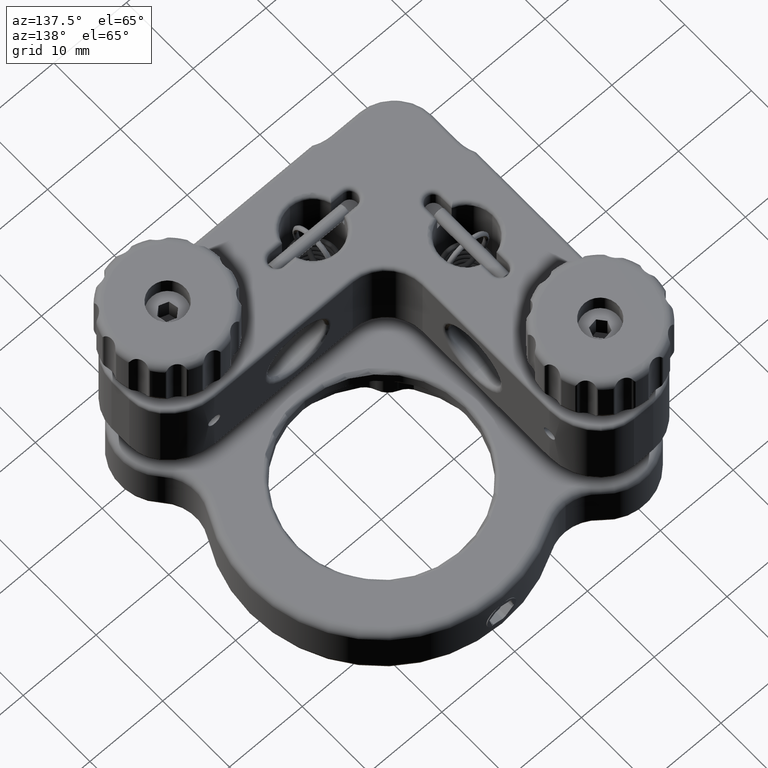
[diagram: clean part render]
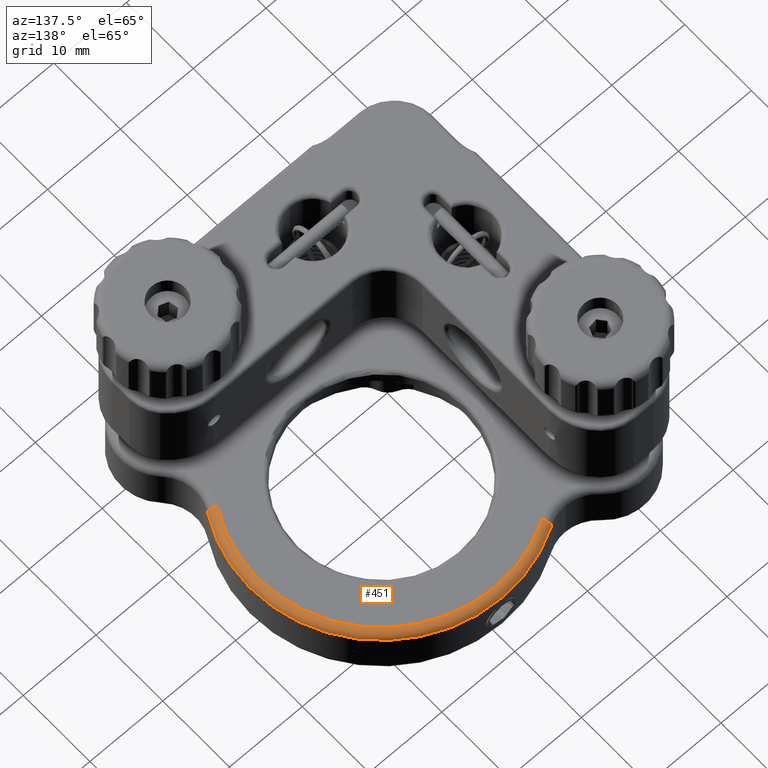
[diagram: same view with one face highlighted and labeled with its STEP entity id]
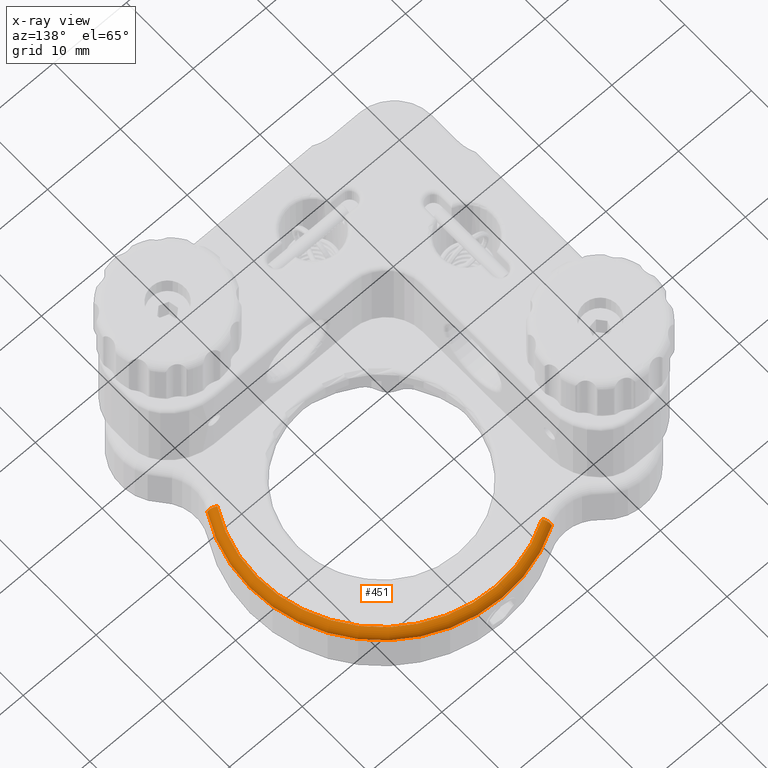
[diagram: x-ray of the same camera — body ghosted, the highlighted face saturated]
A machine part, auxiliary view. The second image highlights one B-rep face of the part: STEP entity #451.
The next image is the same camera in x-ray: the body ghosted, the highlighted face saturated — about 0% of this face is hidden behind the body in this view.
In plain terms, the highlighted toroidal blend (fillet) surface has major radius 17 mm and minor (blend) radius 1 mm.
Its self-contained STEP definition (entity closure, byte-faithful):
#451 = ADVANCED_FACE ( 'NONE', ( #7702 ), #20579, .T. ) ;
#531 = CARTESIAN_POINT ( 'NONE',  ( 34.12360640124477840, 10.83108220009702727, -11.00000000000000711 ) ) ;
#1336 = EDGE_CURVE ( 'NONE', #14840, #2399, #6984, .T. ) ;
#1852 = ORIENTED_EDGE ( 'NONE', *, *, #7085, .T. ) ;
#2141 = DIRECTION ( 'NONE',  ( 0.000000000000000000, -2.775557561562891967E-17, -1.000000000000000000 ) ) ;
#2167 = VERTEX_POINT ( 'NONE', #6623 ) ;
#2399 = VERTEX_POINT ( 'NONE', #14063 ) ;
#2555 = DIRECTION ( 'NONE',  ( -0.8602121412496915864, 0.5099363411707590332, 0.000000000000000000 ) ) ;
#2652 = ORIENTED_EDGE ( 'NONE', *, *, #6473, .F. ) ;
#2717 = AXIS2_PLACEMENT_3D ( 'NONE', #17358, #2141, #21312 ) ;
#3365 = CIRCLE ( 'NONE', #5786, 18.00000000000000000 ) ;
#3712 = CIRCLE ( 'NONE', #23176, 16.99999999999999645 ) ;
#4608 = CARTESIAN_POINT ( 'NONE',  ( 19.50000000000002487, 19.49999999999992539, -11.00000000000000711 ) ) ;
#5046 = ORIENTED_EDGE ( 'NONE', *, *, #1336, .F. ) ;
#5786 = AXIS2_PLACEMENT_3D ( 'NONE', #4608, #14002, #8293 ) ;
#6473 = EDGE_CURVE ( 'NONE', #2399, #2167, #3365, .T. ) ;
#6623 = CARTESIAN_POINT ( 'NONE',  ( 34.98381854249446832, 10.32114585892626657, -11.00000000000000711 ) ) ;
#6984 = CIRCLE ( 'NONE', #13425, 0.9999999999999982236 ) ;
#7085 = EDGE_CURVE ( 'NONE', #9214, #2167, #22367, .T. ) ;
#7702 = FACE_OUTER_BOUND ( 'NONE', #17556, .T. ) ;
#8260 = DIRECTION ( 'NONE',  ( 0.5099363411707596994, 0.8602121412496912534, 4.775136626387579206E-17 ) ) ;
#8293 = DIRECTION ( 'NONE',  ( -2.312964634635742661E-15, -1.000000000000000000, -9.637352644315595243E-17 ) ) ;
#9214 = VERTEX_POINT ( 'NONE', #11493 ) ;
#11493 = CARTESIAN_POINT ( 'NONE',  ( 34.12360640124477840, 10.83108220009703082, -10.00000000000000711 ) ) ;
#11907 = DIRECTION ( 'NONE',  ( -0.8602121412496934738, -0.5099363411707558136, -2.830715335304422386E-17 ) ) ;
#12155 = CARTESIAN_POINT ( 'NONE',  ( 10.83108220009720135, 34.12360640124473576, -10.00000000000000533 ) ) ;
#13425 = AXIS2_PLACEMENT_3D ( 'NONE', #13541, #11907, #19410 ) ;
#13541 = CARTESIAN_POINT ( 'NONE',  ( 10.83108220009719780, 34.12360640124473576, -11.00000000000000711 ) ) ;
#14002 = DIRECTION ( 'NONE',  ( 0.000000000000000000, -2.775557561562891967E-17, -1.000000000000000000 ) ) ;
#14063 = CARTESIAN_POINT ( 'NONE',  ( 10.32114585892644065, 34.98381854249442569, -11.00000000000000711 ) ) ;
#14510 = DIRECTION ( 'NONE',  ( -0.000000000000000000, 2.775557561562891967E-17, 1.000000000000000000 ) ) ;
#14840 = VERTEX_POINT ( 'NONE', #12155 ) ;
#17358 = CARTESIAN_POINT ( 'NONE',  ( 19.50000000000002487, 19.49999999999992539, -11.00000000000000711 ) ) ;
#17556 = EDGE_LOOP ( 'NONE', ( #1852, #2652, #5046, #17628 ) ) ;
#17628 = ORIENTED_EDGE ( 'NONE', *, *, #19556, .F. ) ;
#18472 = CARTESIAN_POINT ( 'NONE',  ( 19.50000000000002487, 19.49999999999992539, -10.00000000000000533 ) ) ;
#19410 = DIRECTION ( 'NONE',  ( 0.5099363411707564797, -0.8602121412496931407, 0.000000000000000000 ) ) ;
#19556 = EDGE_CURVE ( 'NONE', #9214, #14840, #3712, .T. ) ;
#20579 = TOROIDAL_SURFACE ( 'NONE', #2717, 16.99999999999999645, 1.000000000000000000 ) ;
#21312 = DIRECTION ( 'NONE',  ( -2.312964634635743056E-15, -1.000000000000000000, 2.775557561562891967E-17 ) ) ;
#21958 = AXIS2_PLACEMENT_3D ( 'NONE', #531, #8260, #2555 ) ;
#22367 = CIRCLE ( 'NONE', #21958, 1.000000000000000000 ) ;
#22398 = DIRECTION ( 'NONE',  ( -2.244936263028809784E-15, -1.000000000000000000, -1.020425574104004369E-16 ) ) ;
#23176 = AXIS2_PLACEMENT_3D ( 'NONE', #18472, #14510, #22398 ) ;